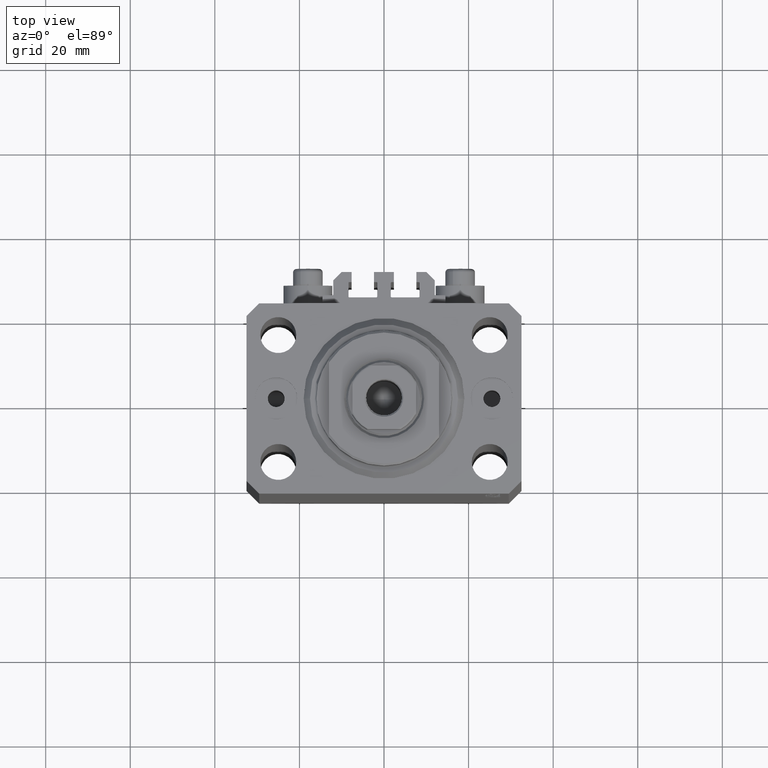
[diagram: clean part render]
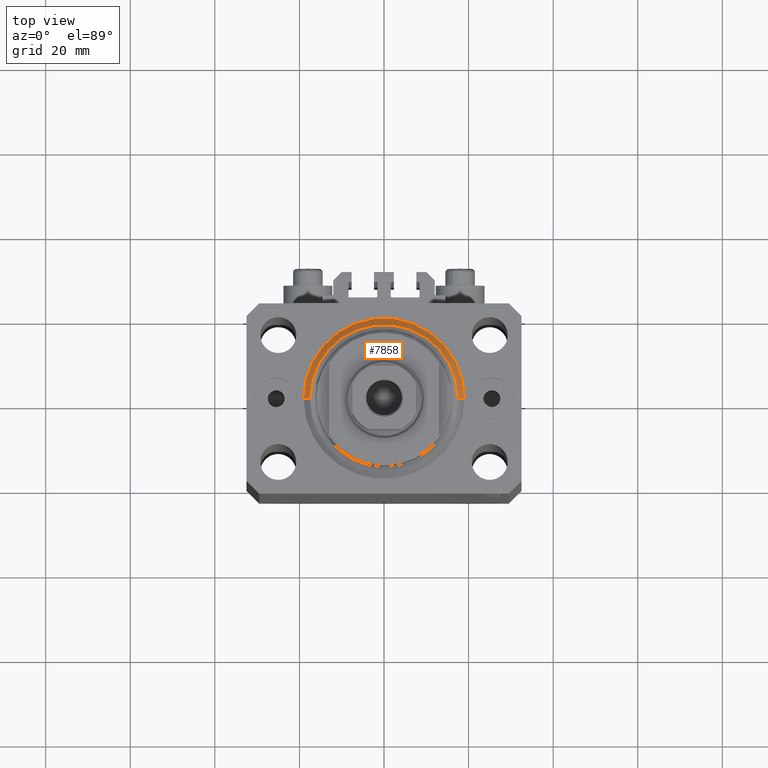
[diagram: same view with one face highlighted and labeled with its STEP entity id]
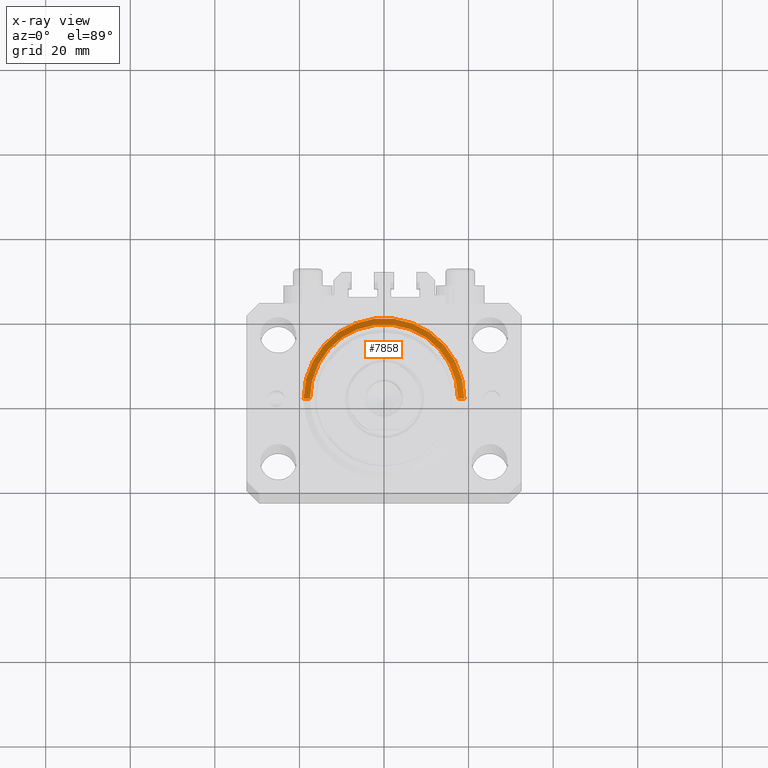
[diagram: x-ray of the same camera — body ghosted, the highlighted face saturated]
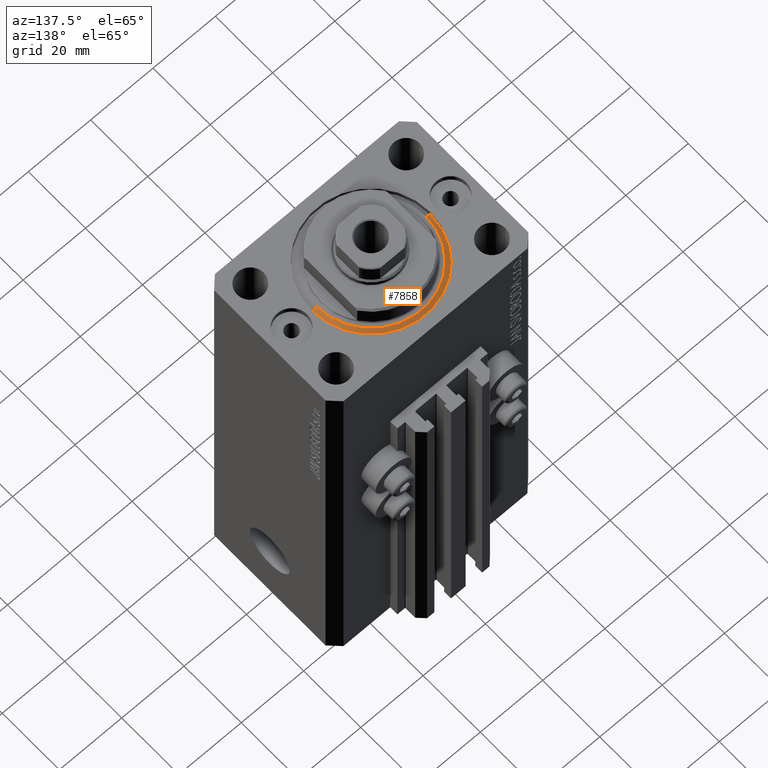
[diagram: same view with one face highlighted and labeled with its STEP entity id]
A machine part, top view. The second image highlights one B-rep face of the part: STEP entity #7858.
The next image is the same camera in x-ray: the body ghosted, the highlighted face saturated — about 0% of this face is hidden behind the body in this view.
A second angle (auxiliary view) of the same face is appended — the face is thin or edge-on in the first view.
In plain terms, the highlighted conical surface has half-angle 45 deg.
Its self-contained STEP definition (entity closure, byte-faithful):
#900 = DIRECTION ( 'NONE',  ( 0.7071067811865483499, 0.000000000000000000, 0.7071067811865467956 ) ) ;
#3216 = VERTEX_POINT ( 'NONE', #8205 ) ;
#5150 = LINE ( 'NONE', #23528, #46980 ) ;
#5792 = EDGE_LOOP ( 'NONE', ( #11268, #28904, #25695, #20618 ) ) ;
#7858 = ADVANCED_FACE ( 'NONE', ( #35511 ), #12601, .T. ) ;
#8205 = CARTESIAN_POINT ( 'NONE',  ( -17.49999999999999645, 2.234980408443919215E-15, 0.000000000000000000 ) ) ;
#9875 = CIRCLE ( 'NONE', #31172, 17.49999999999999645 ) ;
#9992 = DIRECTION ( 'NONE',  ( -0.000000000000000000, -0.000000000000000000, 1.000000000000000000 ) ) ;
#11268 = ORIENTED_EDGE ( 'NONE', *, *, #37375, .F. ) ;
#11730 = CARTESIAN_POINT ( 'NONE',  ( -19.00000000000000000, 0.000000000000000000, 1.500000000000001332 ) ) ;
#12601 = CONICAL_SURFACE ( 'NONE', #35451, 19.00000000000000000, 0.7853981633974492782 ) ;
#12968 = CIRCLE ( 'NONE', #38110, 19.00000000000000000 ) ;
#13799 = DIRECTION ( 'NONE',  ( -0.000000000000000000, -0.000000000000000000, 1.000000000000000000 ) ) ;
#14403 = EDGE_CURVE ( 'NONE', #3216, #16793, #5150, .T. ) ;
#15672 = DIRECTION ( 'NONE',  ( -0.7071067811865483499, 8.659560562354942719E-17, 0.7071067811865467956 ) ) ;
#16512 = CARTESIAN_POINT ( 'NONE',  ( 19.00000000000000000, 2.326828918379970970E-15, 1.500000000000001332 ) ) ;
#16793 = VERTEX_POINT ( 'NONE', #11730 ) ;
#17140 = DIRECTION ( 'NONE',  ( 1.000000000000000000, 0.000000000000000000, 0.000000000000000000 ) ) ;
#17222 = EDGE_CURVE ( 'NONE', #23423, #26571, #26928, .T. ) ;
#20618 = ORIENTED_EDGE ( 'NONE', *, *, #17222, .F. ) ;
#21199 = CARTESIAN_POINT ( 'NONE',  ( 0.000000000000000000, 0.000000000000000000, 1.500000000000001332 ) ) ;
#23423 = VERTEX_POINT ( 'NONE', #35544 ) ;
#23528 = CARTESIAN_POINT ( 'NONE',  ( -19.00000000000000000, 2.326828918379970970E-15, 1.500000000000001332 ) ) ;
#25695 = ORIENTED_EDGE ( 'NONE', *, *, #38568, .F. ) ;
#26462 = CARTESIAN_POINT ( 'NONE',  ( 19.00000000000000000, 0.000000000000000000, 1.500000000000001332 ) ) ;
#26571 = VERTEX_POINT ( 'NONE', #16512 ) ;
#26928 = LINE ( 'NONE', #26462, #37165 ) ;
#28673 = DIRECTION ( 'NONE',  ( -0.000000000000000000, -0.000000000000000000, -1.000000000000000000 ) ) ;
#28904 = ORIENTED_EDGE ( 'NONE', *, *, #14403, .T. ) ;
#31172 = AXIS2_PLACEMENT_3D ( 'NONE', #32471, #28673, #43246 ) ;
#32471 = CARTESIAN_POINT ( 'NONE',  ( 0.000000000000000000, 0.000000000000000000, 0.000000000000000000 ) ) ;
#35264 = CARTESIAN_POINT ( 'NONE',  ( 0.000000000000000000, 0.000000000000000000, 1.500000000000001332 ) ) ;
#35451 = AXIS2_PLACEMENT_3D ( 'NONE', #21199, #9992, #42476 ) ;
#35511 = FACE_OUTER_BOUND ( 'NONE', #5792, .T. ) ;
#35544 = CARTESIAN_POINT ( 'NONE',  ( 17.49999999999999645, 0.000000000000000000, 0.000000000000000000 ) ) ;
#37165 = VECTOR ( 'NONE', #900, 1000.000000000000000 ) ;
#37375 = EDGE_CURVE ( 'NONE', #3216, #23423, #9875, .T. ) ;
#38110 = AXIS2_PLACEMENT_3D ( 'NONE', #35264, #13799, #17140 ) ;
#38568 = EDGE_CURVE ( 'NONE', #26571, #16793, #12968, .T. ) ;
#42476 = DIRECTION ( 'NONE',  ( 1.000000000000000000, 0.000000000000000000, 0.000000000000000000 ) ) ;
#43246 = DIRECTION ( 'NONE',  ( 1.000000000000000000, 0.000000000000000000, 0.000000000000000000 ) ) ;
#46980 = VECTOR ( 'NONE', #15672, 1000.000000000000000 ) ;